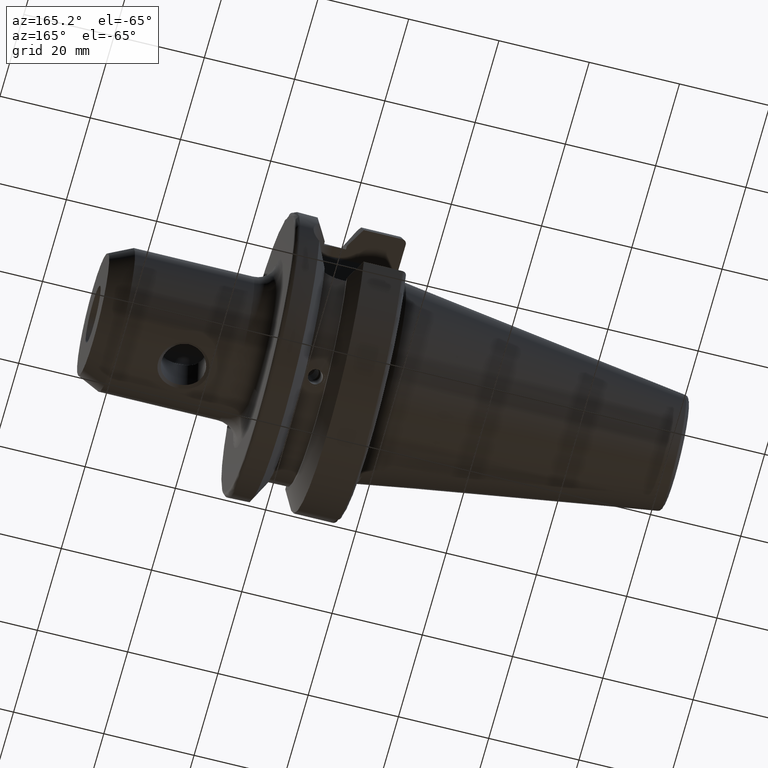
[diagram: clean part render]
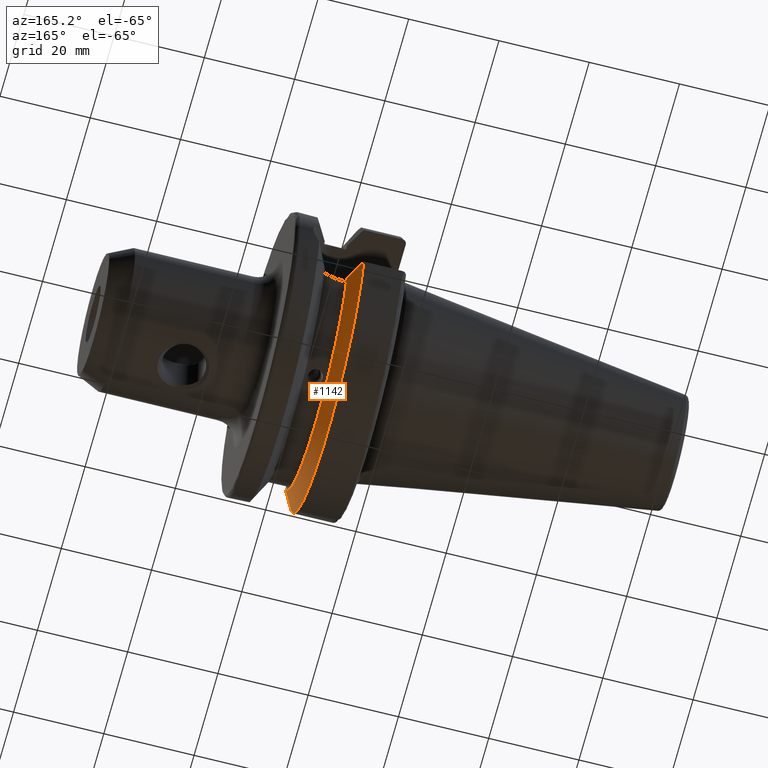
[diagram: same view with one face highlighted and labeled with its STEP entity id]
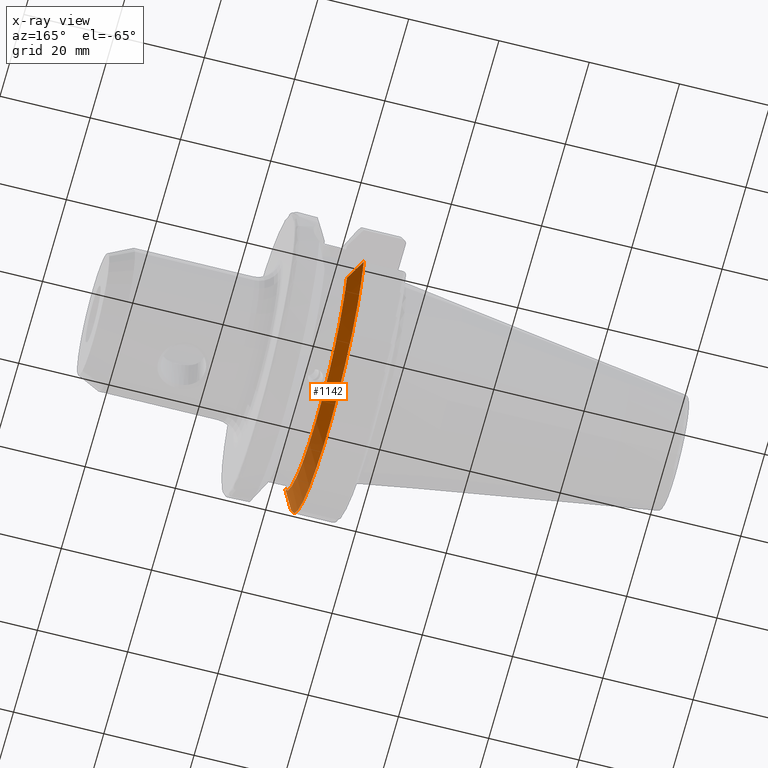
[diagram: x-ray of the same camera — body ghosted, the highlighted face saturated]
A machine part, auxiliary view. The second image highlights one B-rep face of the part: STEP entity #1142.
The next image is the same camera in x-ray: the body ghosted, the highlighted face saturated — about 0% of this face is hidden behind the body in this view.
In plain terms, the highlighted conical surface has half-angle 60.125 deg.
Its self-contained STEP definition (entity closure, byte-faithful):
#16=(
BOUNDED_CURVE()
B_SPLINE_CURVE(2,(#2278,#2279,#2280),.UNSPECIFIED.,.F.,.F.)
B_SPLINE_CURVE_WITH_KNOTS((3,3),(0.,0.52358279083281),.UNSPECIFIED.)
CURVE()
GEOMETRIC_REPRESENTATION_ITEM()
RATIONAL_B_SPLINE_CURVE((1.,1.00307360097546,1.))
REPRESENTATION_ITEM('')
);
#17=(
BOUNDED_CURVE()
B_SPLINE_CURVE(2,(#2335,#2336,#2337),.UNSPECIFIED.,.F.,.F.)
B_SPLINE_CURVE_WITH_KNOTS((3,3),(0.,0.52358279083281),.UNSPECIFIED.)
CURVE()
GEOMETRIC_REPRESENTATION_ITEM()
RATIONAL_B_SPLINE_CURVE((1.,1.00307360097546,1.))
REPRESENTATION_ITEM('')
);
#43=CONICAL_SURFACE('',#1281,29.2970358274569,1.0493792127616);
#124=CIRCLE('',#1280,27.0940716549138);
#125=CIRCLE('',#1282,31.5000000000001);
#220=FACE_OUTER_BOUND('',#297,.T.);
#297=EDGE_LOOP('',(#966,#967,#968,#969));
#549=VERTEX_POINT('',#2275);
#550=VERTEX_POINT('',#2277);
#559=VERTEX_POINT('',#2329);
#560=VERTEX_POINT('',#2333);
#689=EDGE_CURVE('',#550,#549,#16,.T.);
#705=EDGE_CURVE('',#550,#559,#124,.T.);
#707=EDGE_CURVE('',#549,#560,#125,.T.);
#708=EDGE_CURVE('',#560,#559,#17,.T.);
#966=ORIENTED_EDGE('',*,*,#689,.T.);
#967=ORIENTED_EDGE('',*,*,#707,.T.);
#968=ORIENTED_EDGE('',*,*,#708,.T.);
#969=ORIENTED_EDGE('',*,*,#705,.F.);
#1142=ADVANCED_FACE('',(#220),#43,.T.);
#1280=AXIS2_PLACEMENT_3D('',#2330,#1556,#1557);
#1281=AXIS2_PLACEMENT_3D('',#2332,#1559,#1560);
#1282=AXIS2_PLACEMENT_3D('',#2334,#1561,#1562);
#1556=DIRECTION('center_axis',(1.,0.,0.));
#1557=DIRECTION('ref_axis',(0.,0.,-1.));
#1559=DIRECTION('center_axis',(-1.,0.,0.));
#1560=DIRECTION('ref_axis',(0.,1.,0.));
#1561=DIRECTION('center_axis',(1.,0.,0.));
#1562=DIRECTION('ref_axis',(0.,0.,-1.));
#2275=CARTESIAN_POINT('',(11.5690363073382,-30.4540227227866,-8.05));
#2277=CARTESIAN_POINT('',(14.1,-25.8705666509569,-8.05));
#2278=CARTESIAN_POINT('Ctrl Pts',(14.1,-25.8705666509569,-8.05));
#2279=CARTESIAN_POINT('Ctrl Pts',(12.9374976962938,-27.989970265181,-8.05));
#2280=CARTESIAN_POINT('Ctrl Pts',(11.5690363073382,-30.4540227227866,-8.05));
#2329=CARTESIAN_POINT('',(14.1,25.8705666509569,-8.05));
#2330=CARTESIAN_POINT('Origin',(14.1,0.,0.));
#2332=CARTESIAN_POINT('Origin',(12.8345181536691,0.,0.));
#2333=CARTESIAN_POINT('',(11.5690363073382,30.4540227227866,-8.05));
#2334=CARTESIAN_POINT('Origin',(11.5690363073382,0.,0.));
#2335=CARTESIAN_POINT('Ctrl Pts',(11.5690363073382,30.4540227227866,-8.05));
#2336=CARTESIAN_POINT('Ctrl Pts',(12.9374976962938,27.989970265181,-8.05));
#2337=CARTESIAN_POINT('Ctrl Pts',(14.1,25.8705666509569,-8.05));